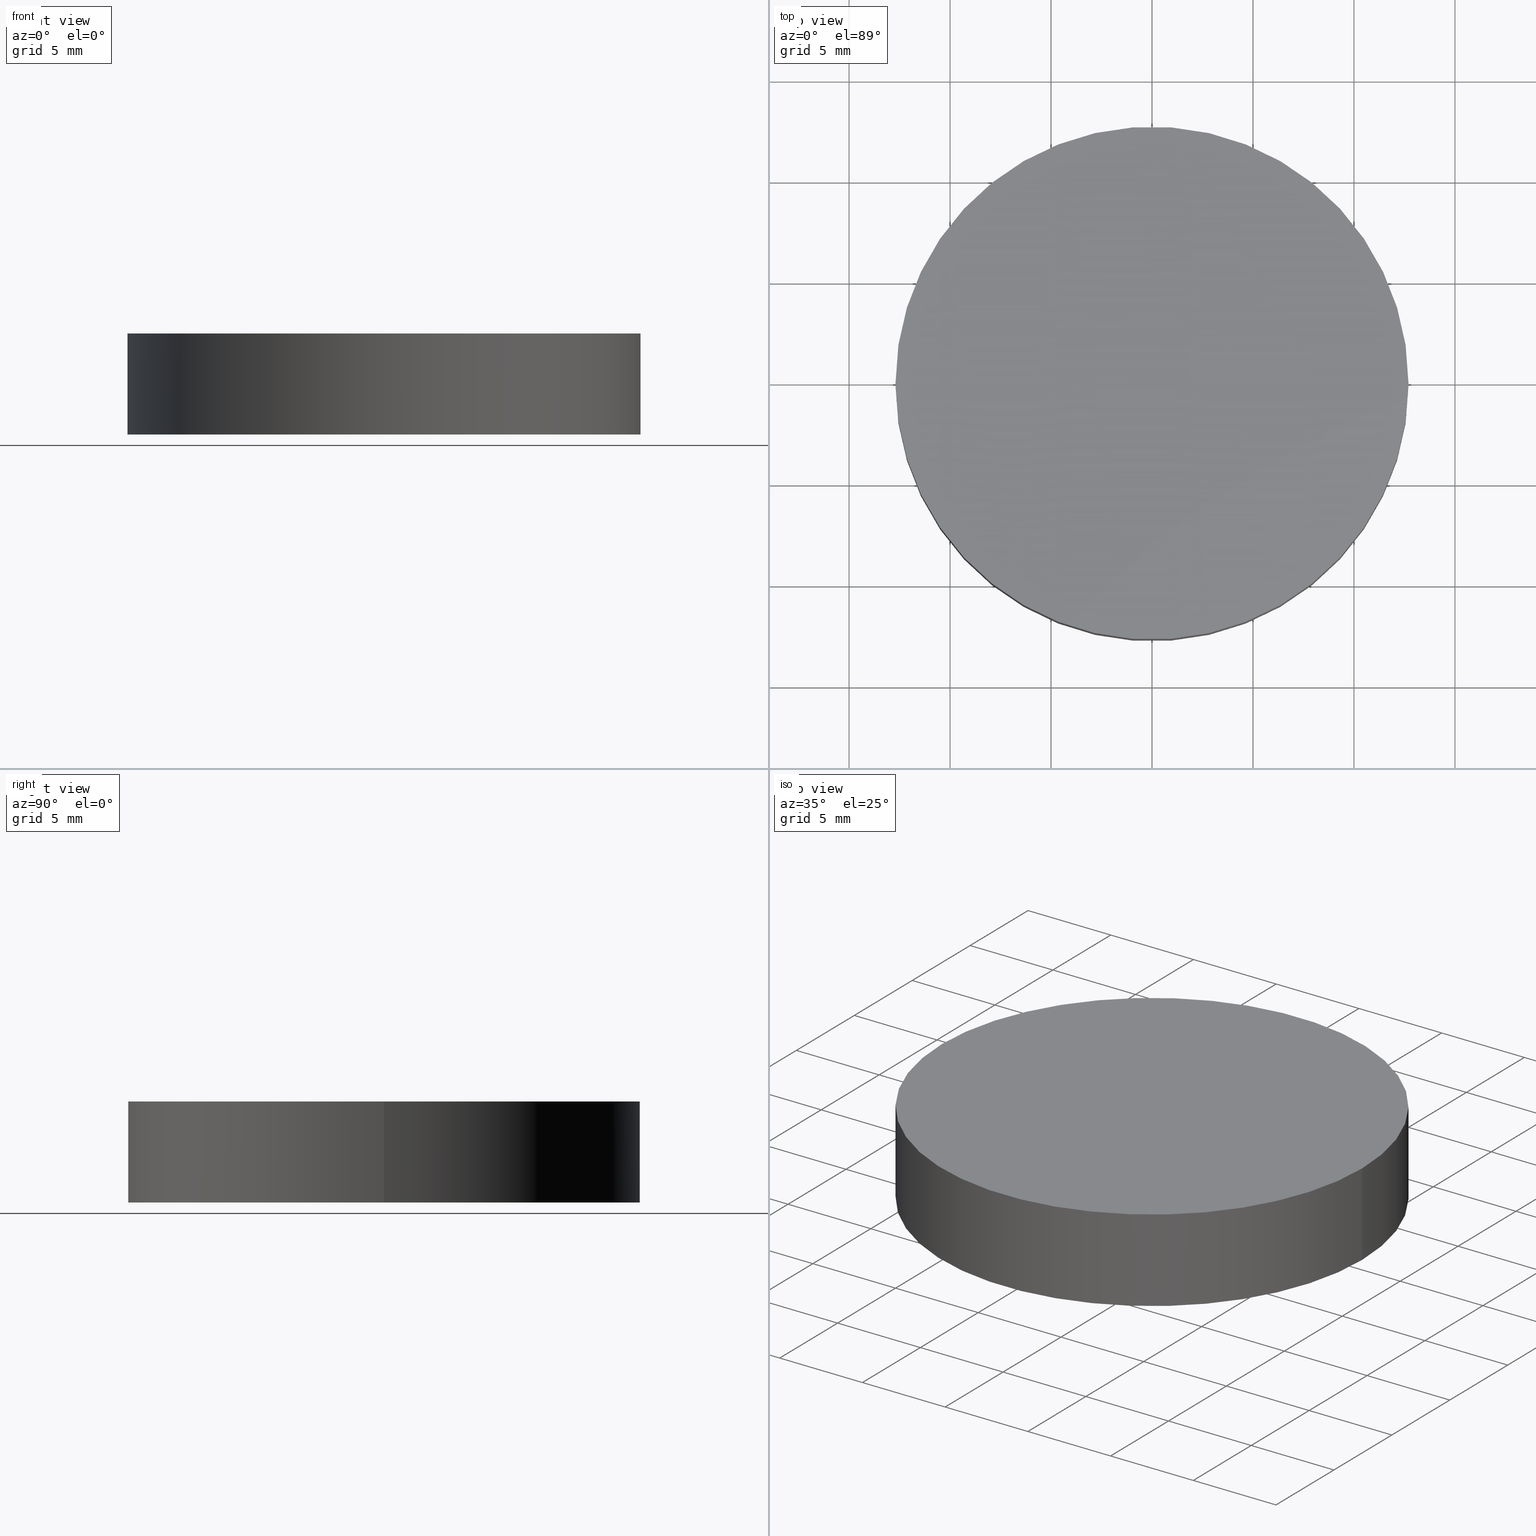
[diagram: canonical four-view strip — front | top / right | iso, engineering-drawing reading convention]
A machine part, canonical four-view strip (front | top / right | iso — engineering-drawing reading convention). The complete STEP part file that produces these views, byte-faithful:
ISO-10303-21;
HEADER;
FILE_DESCRIPTION (( 'STEP AP214' ),
    '1' );
FILE_NAME ('190156.STEP',
    '2019-07-18T06:17:28',
    ( 'user' ),
    ( '΢���й�' ),
    'SwSTEP 2.0',
    'SolidWorks 2016',
    '' );
FILE_SCHEMA (( 'AUTOMOTIVE_DESIGN' ));
ENDSEC;

DATA;
#1 = DIRECTION ( 'NONE',  ( 1.000000000000000000, 0.0000000000000000000, 0.0000000000000000000 ) ) ;
#2 = AXIS2_PLACEMENT_3D ( 'NONE', #52, #83, #5 ) ;
#3 = DIRECTION ( 'NONE',  ( -0.0000000000000000000, -0.0000000000000000000, -1.000000000000000000 ) ) ;
#4 = PLANE ( 'NONE',  #40 ) ;
#5 = DIRECTION ( 'NONE',  ( 1.000000000000000000, 0.0000000000000000000, 0.0000000000000000000 ) ) ;
#6 = VERTEX_POINT ( 'NONE', #26 ) ;
#7 = PRODUCT_DEFINITION_SHAPE ( 'NONE', 'NONE',  #118 ) ;
#8 = AXIS2_PLACEMENT_3D ( 'NONE', #67, #132, #58 ) ;
#9 = PRODUCT ( '190156', '190156', '', ( #116 ) ) ;
#10 =( LENGTH_UNIT ( ) NAMED_UNIT ( * ) SI_UNIT ( .MILLI., .METRE. ) );
#11 = EDGE_CURVE ( 'NONE', #95, #79, #19, .T. ) ;
#12 = LINE ( 'NONE', #119, #138 ) ;
#13 = CARTESIAN_POINT ( 'NONE',  ( 0.0000000000000000000, 0.0000000000000000000, 5.000000000000000000 ) ) ;
#14 = ADVANCED_FACE ( 'NONE', ( #88 ), #4, .F. ) ;
#15 = CARTESIAN_POINT ( 'NONE',  ( 12.69999999999999900, 1.555301434917138400E-015, 0.0000000000000000000 ) ) ;
#16 = FACE_OUTER_BOUND ( 'NONE', #110, .T. ) ;
#17 = DIRECTION ( 'NONE',  ( 0.0000000000000000000, 0.0000000000000000000, 1.000000000000000000 ) ) ;
#18 = AXIS2_PLACEMENT_3D ( 'NONE', #93, #104, #82 ) ;
#19 = CIRCLE ( 'NONE', #2, 12.69999999999999900 ) ;
#20 = UNCERTAINTY_MEASURE_WITH_UNIT (LENGTH_MEASURE( 1.000000000000000100E-005 ), #102, 'distance_accuracy_value', 'NONE');
#21 = ORIENTED_EDGE ( 'NONE', *, *, #128, .T. ) ;
#22 = SURFACE_STYLE_FILL_AREA ( #98 ) ;
#23 = SURFACE_SIDE_STYLE ('',( #22 ) ) ;
#24 = EDGE_LOOP ( 'NONE', ( #94, #63, #85, #114 ) ) ;
#25 = PRESENTATION_LAYER_ASSIGNMENT (  '', '', ( #139 ) ) ;
#26 = CARTESIAN_POINT ( 'NONE',  ( -12.69999999999999900, 0.0000000000000000000, 5.000000000000000000 ) ) ;
#27 = ADVANCED_FACE ( 'NONE', ( #105 ), #50, .T. ) ;
#28 =( NAMED_UNIT ( * ) PLANE_ANGLE_UNIT ( ) SI_UNIT ( $, .RADIAN. ) );
#29 = CARTESIAN_POINT ( 'NONE',  ( -12.69999999999999900, 0.0000000000000000000, 5.000000000000000000 ) ) ;
#30 = CYLINDRICAL_SURFACE ( 'NONE', #61, 12.69999999999999900 ) ;
#31 = MECHANICAL_DESIGN_GEOMETRIC_PRESENTATION_REPRESENTATION (  '', ( #139 ), #39 ) ;
#32 = COLOUR_RGB ( '',1.000000000000000000, 1.000000000000000000, 1.000000000000000000 ) ;
#33 = APPLICATION_CONTEXT ( 'automotive_design' ) ;
#34 = CLOSED_SHELL ( 'NONE', ( #111, #66, #27, #14 ) ) ;
#35 = FILL_AREA_STYLE_COLOUR ( '', #32 ) ;
#36 = SURFACE_STYLE_USAGE ( .BOTH. , #112 ) ;
#37 = DIRECTION ( 'NONE',  ( 1.000000000000000000, 0.0000000000000000000, -0.0000000000000000000 ) ) ;
#38 = VERTEX_POINT ( 'NONE', #121 ) ;
#39 =( GEOMETRIC_REPRESENTATION_CONTEXT ( 3 ) GLOBAL_UNCERTAINTY_ASSIGNED_CONTEXT ( ( #20 ) ) GLOBAL_UNIT_ASSIGNED_CONTEXT ( ( #102, #28, #91 ) ) REPRESENTATION_CONTEXT ( 'NONE', 'WORKASPACE' ) );
#40 = AXIS2_PLACEMENT_3D ( 'NONE', #71, #68, #134 ) ;
#41 = CIRCLE ( 'NONE', #54, 12.69999999999999900 ) ;
#42 = APPLICATION_CONTEXT ( 'automotive_design' ) ;
#43 = APPLICATION_PROTOCOL_DEFINITION ( 'draft international standard', 'automotive_design', 1998, #33 ) ;
#44 = CIRCLE ( 'NONE', #8, 12.69999999999999900 ) ;
#45 =( GEOMETRIC_REPRESENTATION_CONTEXT ( 3 ) GLOBAL_UNCERTAINTY_ASSIGNED_CONTEXT ( ( #78 ) ) GLOBAL_UNIT_ASSIGNED_CONTEXT ( ( #64, #130, #57 ) ) REPRESENTATION_CONTEXT ( 'NONE', 'WORKASPACE' ) );
#46 = ORIENTED_EDGE ( 'NONE', *, *, #62, .T. ) ;
#47 = ADVANCED_BREP_SHAPE_REPRESENTATION ( '190156', ( #108, #115 ), #45 ) ;
#48 = FILL_AREA_STYLE ('',( #103 ) ) ;
#49 = CARTESIAN_POINT ( 'NONE',  ( -12.69999999999999900, 0.0000000000000000000, 0.0000000000000000000 ) ) ;
#50 = PLANE ( 'NONE',  #73 ) ;
#51 = ORIENTED_EDGE ( 'NONE', *, *, #11, .F. ) ;
#52 = CARTESIAN_POINT ( 'NONE',  ( 0.0000000000000000000, 0.0000000000000000000, 0.0000000000000000000 ) ) ;
#53 = ORIENTED_EDGE ( 'NONE', *, *, #77, .T. ) ;
#54 = AXIS2_PLACEMENT_3D ( 'NONE', #13, #80, #1 ) ;
#55 = DIRECTION ( 'NONE',  ( 1.000000000000000000, 0.0000000000000000000, 0.0000000000000000000 ) ) ;
#56 = ORIENTED_EDGE ( 'NONE', *, *, #77, .F. ) ;
#57 =( NAMED_UNIT ( * ) SI_UNIT ( $, .STERADIAN. ) SOLID_ANGLE_UNIT ( ) );
#58 = DIRECTION ( 'NONE',  ( 1.000000000000000000, 0.0000000000000000000, 0.0000000000000000000 ) ) ;
#59 = DIRECTION ( 'NONE',  ( 0.0000000000000000000, 0.0000000000000000000, 1.000000000000000000 ) ) ;
#60 = CARTESIAN_POINT ( 'NONE',  ( 0.0000000000000000000, 0.0000000000000000000, 5.000000000000000000 ) ) ;
#61 = AXIS2_PLACEMENT_3D ( 'NONE', #81, #3, #131 ) ;
#62 = EDGE_CURVE ( 'NONE', #38, #6, #124, .T. ) ;
#63 = ORIENTED_EDGE ( 'NONE', *, *, #109, .T. ) ;
#64 =( LENGTH_UNIT ( ) NAMED_UNIT ( * ) SI_UNIT ( .MILLI., .METRE. ) );
#65 = DIRECTION ( 'NONE',  ( -0.0000000000000000000, -0.0000000000000000000, -1.000000000000000000 ) ) ;
#66 = ADVANCED_FACE ( 'NONE', ( #16 ), #70, .T. ) ;
#67 = CARTESIAN_POINT ( 'NONE',  ( 0.0000000000000000000, 0.0000000000000000000, 0.0000000000000000000 ) ) ;
#68 = DIRECTION ( 'NONE',  ( 0.0000000000000000000, 0.0000000000000000000, 1.000000000000000000 ) ) ;
#69 = EDGE_CURVE ( 'NONE', #6, #79, #72, .T. ) ;
#70 = CYLINDRICAL_SURFACE ( 'NONE', #18, 12.69999999999999900 ) ;
#71 = CARTESIAN_POINT ( 'NONE',  ( 0.0000000000000000000, 0.0000000000000000000, 0.0000000000000000000 ) ) ;
#72 = LINE ( 'NONE', #29, #123 ) ;
#73 = AXIS2_PLACEMENT_3D ( 'NONE', #60, #17, #37 ) ;
#74 = ORIENTED_EDGE ( 'NONE', *, *, #128, .F. ) ;
#75 = STYLED_ITEM ( 'NONE', ( #140 ), #47 ) ;
#76 =( NAMED_UNIT ( * ) PLANE_ANGLE_UNIT ( ) SI_UNIT ( $, .RADIAN. ) );
#77 = EDGE_CURVE ( 'NONE', #79, #95, #44, .T. ) ;
#78 = UNCERTAINTY_MEASURE_WITH_UNIT (LENGTH_MEASURE( 1.000000000000000100E-005 ), #64, 'distance_accuracy_value', 'NONE');
#79 = VERTEX_POINT ( 'NONE', #49 ) ;
#80 = DIRECTION ( 'NONE',  ( 0.0000000000000000000, 0.0000000000000000000, 1.000000000000000000 ) ) ;
#81 = CARTESIAN_POINT ( 'NONE',  ( 0.0000000000000000000, 0.0000000000000000000, 5.000000000000000000 ) ) ;
#82 = DIRECTION ( 'NONE',  ( -1.000000000000000000, 0.0000000000000000000, 0.0000000000000000000 ) ) ;
#83 = DIRECTION ( 'NONE',  ( 0.0000000000000000000, 0.0000000000000000000, 1.000000000000000000 ) ) ;
#84 = PRESENTATION_LAYER_ASSIGNMENT (  '', '', ( #75 ) ) ;
#85 = ORIENTED_EDGE ( 'NONE', *, *, #11, .T. ) ;
#86 = FACE_OUTER_BOUND ( 'NONE', #24, .T. ) ;
#87 = SURFACE_STYLE_USAGE ( .BOTH. , #23 ) ;
#88 = FACE_OUTER_BOUND ( 'NONE', #106, .T. ) ;
#89 = MECHANICAL_DESIGN_GEOMETRIC_PRESENTATION_REPRESENTATION (  '', ( #75 ), #97 ) ;
#90 = CARTESIAN_POINT ( 'NONE',  ( 0.0000000000000000000, 0.0000000000000000000, 0.0000000000000000000 ) ) ;
#91 =( NAMED_UNIT ( * ) SI_UNIT ( $, .STERADIAN. ) SOLID_ANGLE_UNIT ( ) );
#92 = DIRECTION ( 'NONE',  ( -0.0000000000000000000, -0.0000000000000000000, -1.000000000000000000 ) ) ;
#93 = CARTESIAN_POINT ( 'NONE',  ( 0.0000000000000000000, 0.0000000000000000000, 5.000000000000000000 ) ) ;
#94 = ORIENTED_EDGE ( 'NONE', *, *, #62, .F. ) ;
#95 = VERTEX_POINT ( 'NONE', #15 ) ;
#96 = PRESENTATION_STYLE_ASSIGNMENT (( #36 ) ) ;
#97 =( GEOMETRIC_REPRESENTATION_CONTEXT ( 3 ) GLOBAL_UNCERTAINTY_ASSIGNED_CONTEXT ( ( #126 ) ) GLOBAL_UNIT_ASSIGNED_CONTEXT ( ( #10, #76, #137 ) ) REPRESENTATION_CONTEXT ( 'NONE', 'WORKASPACE' ) );
#98 = FILL_AREA_STYLE ('',( #35 ) ) ;
#99 = COLOUR_RGB ( '',1.000000000000000000, 1.000000000000000000, 1.000000000000000000 ) ;
#100 = PRODUCT_DEFINITION_CONTEXT ( 'detailed design', #42, 'design' ) ;
#101 = SHAPE_DEFINITION_REPRESENTATION ( #7, #47 ) ;
#102 =( LENGTH_UNIT ( ) NAMED_UNIT ( * ) SI_UNIT ( .MILLI., .METRE. ) );
#103 = FILL_AREA_STYLE_COLOUR ( '', #99 ) ;
#104 = DIRECTION ( 'NONE',  ( -0.0000000000000000000, -0.0000000000000000000, -1.000000000000000000 ) ) ;
#105 = FACE_OUTER_BOUND ( 'NONE', #136, .T. ) ;
#106 = EDGE_LOOP ( 'NONE', ( #56, #51 ) ) ;
#107 = APPLICATION_PROTOCOL_DEFINITION ( 'draft international standard', 'automotive_design', 1998, #42 ) ;
#108 = MANIFOLD_SOLID_BREP ( '͹̨-����1', #34 ) ;
#109 = EDGE_CURVE ( 'NONE', #38, #95, #12, .T. ) ;
#110 = EDGE_LOOP ( 'NONE', ( #129, #74, #117, #53 ) ) ;
#111 = ADVANCED_FACE ( 'NONE', ( #86 ), #30, .T. ) ;
#112 = SURFACE_SIDE_STYLE ('',( #122 ) ) ;
#113 = AXIS2_PLACEMENT_3D ( 'NONE', #133, #59, #120 ) ;
#114 = ORIENTED_EDGE ( 'NONE', *, *, #69, .F. ) ;
#115 = AXIS2_PLACEMENT_3D ( 'NONE', #90, #127, #55 ) ;
#116 = PRODUCT_CONTEXT ( 'NONE', #33, 'mechanical' ) ;
#117 = ORIENTED_EDGE ( 'NONE', *, *, #69, .T. ) ;
#118 = PRODUCT_DEFINITION ( 'δ֪', '', #125, #100 ) ;
#119 = CARTESIAN_POINT ( 'NONE',  ( 12.69999999999999900, 1.555301434917138400E-015, 5.000000000000000000 ) ) ;
#120 = DIRECTION ( 'NONE',  ( 1.000000000000000000, 0.0000000000000000000, 0.0000000000000000000 ) ) ;
#121 = CARTESIAN_POINT ( 'NONE',  ( 12.69999999999999900, 1.555301434917138400E-015, 5.000000000000000000 ) ) ;
#122 = SURFACE_STYLE_FILL_AREA ( #48 ) ;
#123 = VECTOR ( 'NONE', #92, 1000.000000000000000 ) ;
#124 = CIRCLE ( 'NONE', #113, 12.69999999999999900 ) ;
#125 = PRODUCT_DEFINITION_FORMATION_WITH_SPECIFIED_SOURCE ( '�κ�', '', #9, .NOT_KNOWN. ) ;
#126 = UNCERTAINTY_MEASURE_WITH_UNIT (LENGTH_MEASURE( 1.000000000000000100E-005 ), #10, 'distance_accuracy_value', 'NONE');
#127 = DIRECTION ( 'NONE',  ( 0.0000000000000000000, 0.0000000000000000000, 1.000000000000000000 ) ) ;
#128 = EDGE_CURVE ( 'NONE', #6, #38, #41, .T. ) ;
#129 = ORIENTED_EDGE ( 'NONE', *, *, #109, .F. ) ;
#130 =( NAMED_UNIT ( * ) PLANE_ANGLE_UNIT ( ) SI_UNIT ( $, .RADIAN. ) );
#131 = DIRECTION ( 'NONE',  ( -1.000000000000000000, 0.0000000000000000000, 0.0000000000000000000 ) ) ;
#132 = DIRECTION ( 'NONE',  ( 0.0000000000000000000, 0.0000000000000000000, 1.000000000000000000 ) ) ;
#133 = CARTESIAN_POINT ( 'NONE',  ( 0.0000000000000000000, 0.0000000000000000000, 5.000000000000000000 ) ) ;
#134 = DIRECTION ( 'NONE',  ( 1.000000000000000000, 0.0000000000000000000, -0.0000000000000000000 ) ) ;
#135 = PRODUCT_RELATED_PRODUCT_CATEGORY ( 'part', '', ( #9 ) ) ;
#136 = EDGE_LOOP ( 'NONE', ( #21, #46 ) ) ;
#137 =( NAMED_UNIT ( * ) SI_UNIT ( $, .STERADIAN. ) SOLID_ANGLE_UNIT ( ) );
#138 = VECTOR ( 'NONE', #65, 1000.000000000000000 ) ;
#139 = STYLED_ITEM ( 'NONE', ( #96 ), #108 ) ;
#140 = PRESENTATION_STYLE_ASSIGNMENT (( #87 ) ) ;
ENDSEC;
END-ISO-10303-21;
